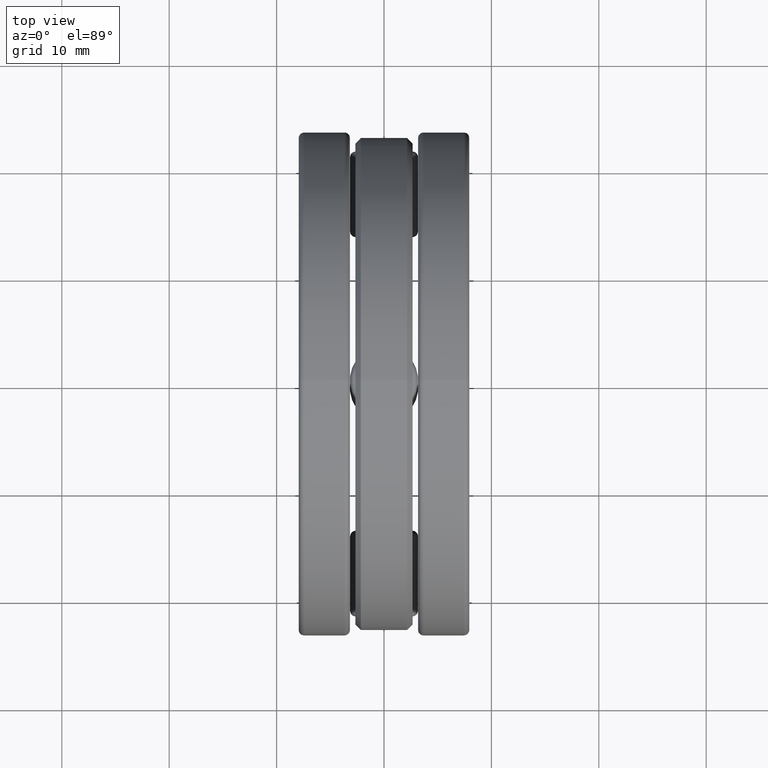
[diagram: clean part render]
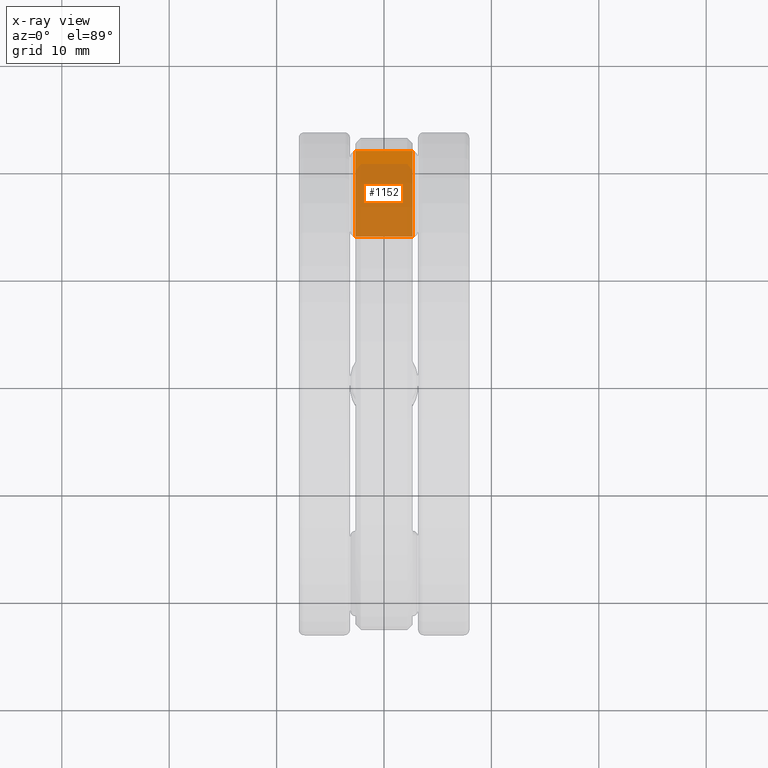
[diagram: x-ray — body ghosted, one internal face saturated and labeled with its STEP entity id]
A machine part, top view, then the same camera in x-ray: the body is ghosted and one INTERNAL B-rep face — a face not visible from any outside direction — is saturated and labeled: STEP entity #1152.
In plain terms, the highlighted planar face has unit normal (0, -0, -1).
Its self-contained STEP definition (entity closure, byte-faithful):
#1 = VECTOR ( 'NONE', #1059, 39.37007874015748100 ) ;
#55 = EDGE_CURVE ( 'NONE', #1419, #903, #805, .T. ) ;
#132 = CARTESIAN_POINT ( 'NONE',  ( -0.1049999999999998700, 9.497719651790983900E-017, 0.1250000000000002500 ) ) ;
#164 = DIRECTION ( 'NONE',  ( 0.0000000000000000000, -4.907511365863949700E-016, -1.000000000000000000 ) ) ;
#228 = EDGE_LOOP ( 'NONE', ( #463, #668, #1032, #797 ) ) ;
#279 = DIRECTION ( 'NONE',  ( 0.0000000000000000000, 1.000000000000000000, -4.907511365863949700E-016 ) ) ;
#337 = VERTEX_POINT ( 'NONE', #649 ) ;
#365 = CARTESIAN_POINT ( 'NONE',  ( -0.3125000000000000000, 0.5387500000000000600, 0.1250000000000000000 ) ) ;
#384 = LINE ( 'NONE', #1276, #610 ) ;
#462 = CARTESIAN_POINT ( 'NONE',  ( -0.1049999999999998700, 0.5387500000000000600, 0.1250000000000000000 ) ) ;
#463 = ORIENTED_EDGE ( 'NONE', *, *, #55, .F. ) ;
#484 = DIRECTION ( 'NONE',  ( 1.000000000000000000, -0.0000000000000000000, -0.0000000000000000000 ) ) ;
#515 = EDGE_CURVE ( 'NONE', #1419, #337, #1106, .T. ) ;
#554 = EDGE_CURVE ( 'NONE', #337, #1356, #384, .T. ) ;
#608 = CARTESIAN_POINT ( 'NONE',  ( 0.1050000000000000400, 0.5387500000000000600, 0.1250000000000000000 ) ) ;
#610 = VECTOR ( 'NONE', #1175, 39.37007874015748100 ) ;
#614 = DIRECTION ( 'NONE',  ( 0.0000000000000000000, 1.000000000000000000, -4.907511365863949700E-016 ) ) ;
#649 = CARTESIAN_POINT ( 'NONE',  ( -0.1049999999999998700, 0.8518749999999998300, 0.1249999999999998500 ) ) ;
#651 = VECTOR ( 'NONE', #614, 39.37007874015748100 ) ;
#668 = ORIENTED_EDGE ( 'NONE', *, *, #515, .T. ) ;
#797 = ORIENTED_EDGE ( 'NONE', *, *, #985, .F. ) ;
#805 = LINE ( 'NONE', #365, #1123 ) ;
#855 = PLANE ( 'NONE',  #1189 ) ;
#863 = CARTESIAN_POINT ( 'NONE',  ( 0.1050000000000000400, 0.8518749999999998300, 0.1249999999999998500 ) ) ;
#903 = VERTEX_POINT ( 'NONE', #608 ) ;
#985 = EDGE_CURVE ( 'NONE', #903, #1356, #1132, .T. ) ;
#1032 = ORIENTED_EDGE ( 'NONE', *, *, #554, .T. ) ;
#1059 = DIRECTION ( 'NONE',  ( 0.0000000000000000000, 1.000000000000000000, -4.907511365863949700E-016 ) ) ;
#1106 = LINE ( 'NONE', #132, #1 ) ;
#1123 = VECTOR ( 'NONE', #484, 39.37007874015748100 ) ;
#1132 = LINE ( 'NONE', #1322, #651 ) ;
#1152 = ADVANCED_FACE ( 'NONE', ( #1369 ), #855, .T. ) ;
#1175 = DIRECTION ( 'NONE',  ( 1.000000000000000000, -0.0000000000000000000, -0.0000000000000000000 ) ) ;
#1189 = AXIS2_PLACEMENT_3D ( 'NONE', #1434, #164, #279 ) ;
#1276 = CARTESIAN_POINT ( 'NONE',  ( -0.3125000000000000000, 0.8518749999999998300, 0.1249999999999998500 ) ) ;
#1322 = CARTESIAN_POINT ( 'NONE',  ( 0.1050000000000000400, 6.614864985110097200E-017, 0.1250000000000002500 ) ) ;
#1356 = VERTEX_POINT ( 'NONE', #863 ) ;
#1369 = FACE_OUTER_BOUND ( 'NONE', #228, .T. ) ;
#1419 = VERTEX_POINT ( 'NONE', #462 ) ;
#1434 = CARTESIAN_POINT ( 'NONE',  ( -0.3125000000000000000, 0.5387500000000000600, 0.1250000000000000000 ) ) ;